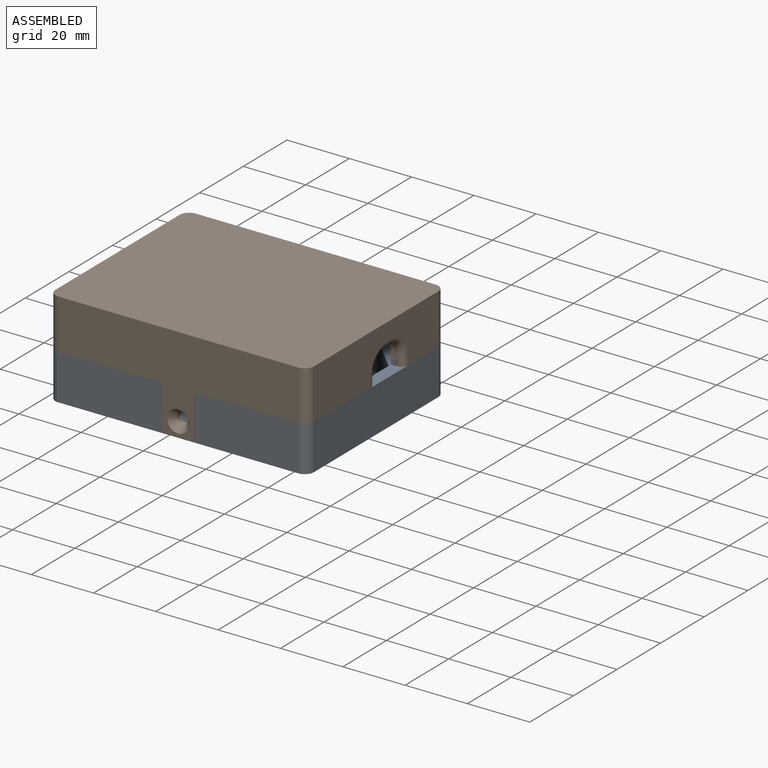
[diagram: assembled view]
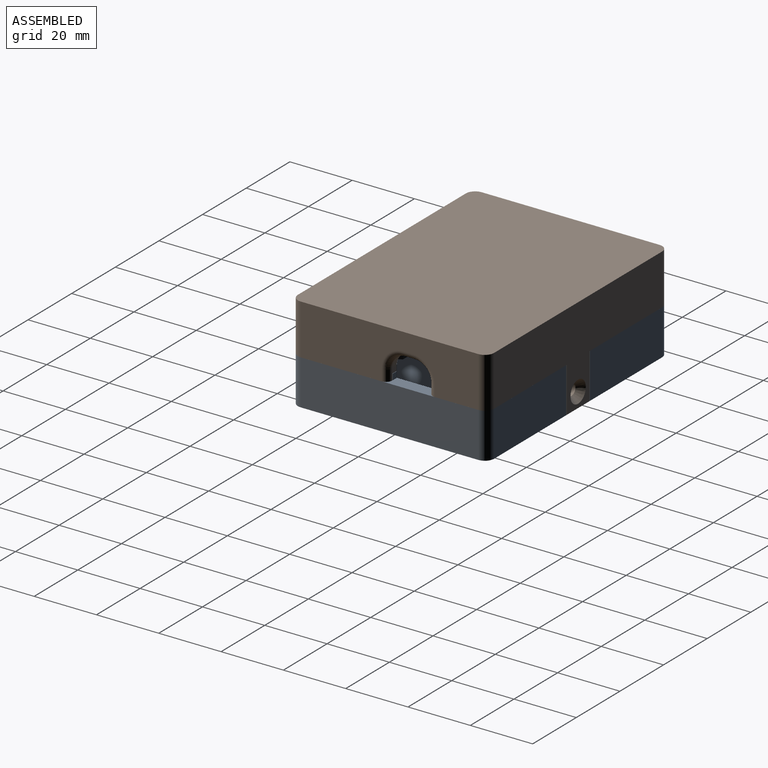
[diagram: assembled view, second angle]
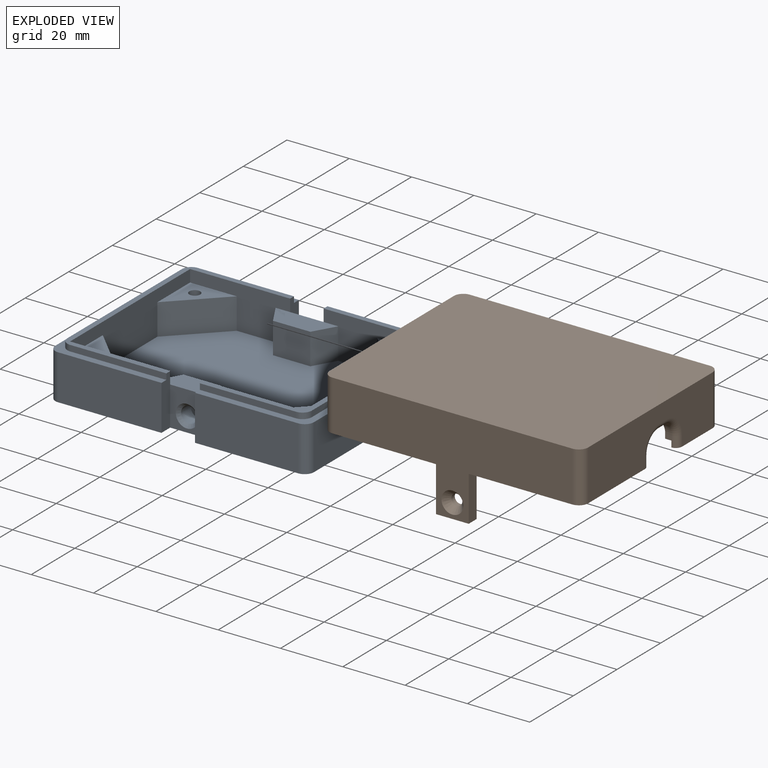
[diagram: exploded view]
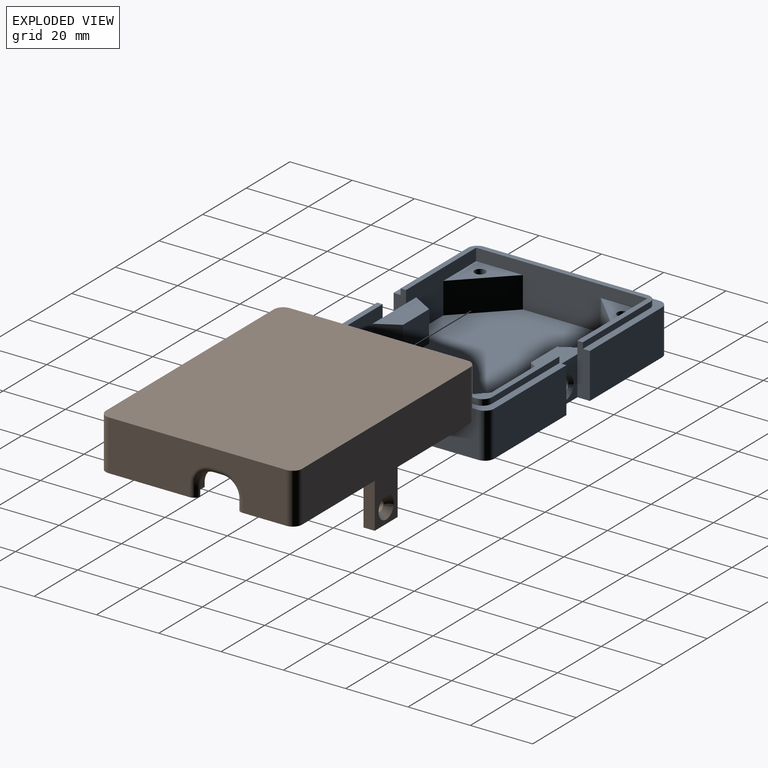
[diagram: exploded view, second angle]
ASSEMBLY  parts=2 mates=3
PART A: 80 faces, bbox 83x63x16.4 mm
  f0: plane 25.75x1.9mm, normal (1,0,0), area 48.9mm2, adj f6,f55,f58,f73
  f1: plane 33.88x16.75mm, normal (0,0,1), area 83.6mm2, adj f9,f21,f43,f53,f54,f59,f72
  f2: cylinder r=1.75mm len=6mm, axis (0,0,1), area 66mm2, adj f29,f69
  f3: cylinder r=1.75mm len=6mm, axis (0,0,1), area 66mm2, adj f27,f68
  f4: cylinder r=1.75mm len=6mm, axis (0,0,1), area 66mm2, adj f25,f70
  f5: cylinder r=1.75mm len=6mm, axis (0,0,1), area 66mm2, adj f23,f71
  f6: plane 63x36.13mm, normal (0,0,1), area 316.9mm2, adj f0,f8,f10,f20,f21,f38,f43,f52
  f7: plane 63x36.13mm, normal (0,0,1), area 294.2mm2, adj f17,f18,f19,f40,f44,f48,f49,f50
  f8: plane 33.13x14.5mm, normal (0,1,0), area 480.3mm2, adj f6,f12,f43,f63
  f9: plane 32.13x13.9mm, normal (0,-1,0), area 249.9mm2, adj f1,f13,f21,f26,f27,f30,f32,f43
  f10: plane 33.13x14.5mm, normal (0,-1,0), area 480.3mm2, adj f6,f12,f38,f62
  f11: plane 32.13x13.9mm, normal (0,1,0), area 249.9mm2, adj f13,f21,f28,f29,f34,f35,f38,f55
  f12: plane 83x63mm, normal (0,0,-1), area 4972.4mm2, adj f8,f10,f17,f18,f19,f20,f38,f39
  f13: plane 75x55mm, normal (0,0,1), area 3450.4mm2, adj f9,f11,f14,f15,f16,f21,f22,f24
  f14: plane 32.13x13.9mm, normal (0,1,0), area 249.9mm2, adj f13,f16,f24,f25,f34,f37,f40,f51
  f15: plane 32.13x13.9mm, normal (0,-1,0), area 249.9mm2, adj f13,f16,f22,f23,f30,f31,f44,f51
  f16: plane 55x13.9mm, normal (1,0,0), area 464.5mm2, adj f13,f14,f15,f22,f23,f24,f25,f51
  f17: plane 33.13x14.5mm, normal (0,1,0), area 480.3mm2, adj f7,f12,f44,f60
  f18: plane 57x14.5mm, normal (-1,0,0), area 826.5mm2, adj f7,f12,f60,f61
  f19: plane 33.13x14.5mm, normal (0,-1,0), area 480.3mm2, adj f7,f12,f40,f61
  f20: plane 57x14.5mm, normal (1,0,0), area 826.5mm2, adj f6,f12,f62,f63
  f21: plane 55x13.9mm, normal (-1,0,0), area 439.8mm2, adj f1,f6,f9,f11,f13,f26,f27,f28
  f22: plane 15x15mm, normal (0.71,-0.71,0), area 212.1mm2, adj f13,f15,f16,f23
  f23: plane 15x15mm, normal (0,0,1), area 102.9mm2, adj f5,f15,f16,f22
  f24: plane 15x15mm, normal (0.71,0.71,0), area 212.1mm2, adj f13,f14,f16,f25
  f25: plane 15x15mm, normal (0,0,1), area 102.9mm2, adj f4,f14,f16,f24
  f26: plane 15x15mm, normal (-0.71,-0.71,0), area 212.1mm2, adj f9,f13,f21,f27
  f27: plane 15x15mm, normal (0,0,1), area 102.9mm2, adj f3,f9,f21,f26
  f28: plane 15x15mm, normal (-0.71,0.71,0), area 212.1mm2, adj f11,f13,f21,f29
  f29: plane 15x15mm, normal (0,0,1), area 102.9mm2, adj f2,f11,f21,f28
  f30: plane 20.08x7mm, normal (0,0,1), area 112.3mm2, adj f9,f15,f31,f32,f33,f45
  f31: plane 10x7mm, normal (-0.87,-0.5,0), area 80.8mm2, adj f13,f15,f30,f33
  f32: plane 10x7mm, normal (0.87,-0.5,0), area 80.8mm2, adj f9,f13,f30,f33
  f33: plane 12x10mm, normal (0,-1,0), area 120mm2, adj f13,f30,f31,f32
  f34: plane 20.08x7mm, normal (0,0,1), area 112.3mm2, adj f11,f14,f35,f36,f37,f39
  f35: plane 10x7mm, normal (0.87,0.5,0), area 80.8mm2, adj f11,f13,f34,f36
  f36: plane 12x10mm, normal (0,1,0), area 120mm2, adj f13,f34,f35,f37
  f37: plane 10x7mm, normal (-0.87,0.5,0), area 80.8mm2, adj f13,f14,f34,f36
  f38: plane 16.4x4mm, normal (-1,0,0), area 61.3mm2, adj f6,f10,f11,f12,f39,f52,f55
  f39: plane 12.5x10.75mm, normal (0,-1,0), area 94.2mm2, adj f12,f34,f38,f40,f79
  f40: plane 16.4x4mm, normal (1,0,0), area 61.3mm2, adj f7,f12,f14,f19,f39,f49,f51
  f41: cylinder r=2.58mm len=5.15mm, axis (0,-1,0), area 71.2mm2, adj f42,f79
  f42: plane 5.15x5.15mm, normal (0,-1,0), area 20.8mm2, adj f41
  f43: plane 16.4x4mm, normal (-1,0,0), area 61.3mm2, adj f1,f6,f8,f9,f12,f45,f54
  f44: plane 16.4x4mm, normal (1,0,0), area 61.3mm2, adj f7,f12,f15,f17,f45,f50,f51
  f45: plane 12.5x10.75mm, normal (0,1,0), area 94.2mm2, adj f12,f30,f43,f44,f78
  f46: cylinder r=2.58mm len=5.15mm, axis (0,1,0), area 71.2mm2, adj f47,f78
  f47: plane 5.15x5.15mm, normal (0,1,0), area 20.8mm2, adj f46
  f48: plane 52.5x1.9mm, normal (-1,0,0), area 99.7mm2, adj f7,f51,f56,f57
  f49: plane 30.88x1.9mm, normal (0,-1,0), area 58.7mm2, adj f7,f40,f51,f56
  f50: plane 30.88x1.9mm, normal (0,1,0), area 58.7mm2, adj f7,f44,f51,f57
  f51: plane 58.5x33.88mm, normal (0,0,1), area 210.9mm2, adj f14,f15,f16,f40,f44,f48,f49,f50
  f52: plane 30.88x1.9mm, normal (0,-1,0), area 58.7mm2, adj f6,f38,f55,f58
  f53: plane 13.75x1.9mm, normal (1,0,0), area 26.1mm2, adj f1,f6,f59,f72
  f54: plane 30.88x1.9mm, normal (0,1,0), area 58.7mm2, adj f1,f6,f43,f59
  f55: plane 33.88x28.75mm, normal (0,0,1), area 104.6mm2, adj f0,f11,f21,f38,f52,f58,f73
  f56: cylinder r=3mm len=3mm, axis (0,0,1), area 9mm2, adj f7,f48,f49,f51
  f57: cylinder r=3mm len=3mm, axis (0,0,-1), area 9mm2, adj f7,f48,f50,f51
  f58: cylinder r=3mm len=3mm, axis (0,0,-1), area 9mm2, adj f0,f6,f52,f55
  f59: cylinder r=3mm len=3mm, axis (0,0,1), area 9mm2, adj f1,f6,f53,f54
  f60: cylinder r=3mm len=14.5mm, axis (0,0,-1), area 68.3mm2, adj f7,f12,f17,f18
  f61: cylinder r=3mm len=14.5mm, axis (0,0,1), area 68.3mm2, adj f7,f12,f18,f19
  f62: cylinder r=3mm len=14.5mm, axis (0,0,-1), area 68.3mm2, adj f6,f10,f12,f20
  f63: cylinder r=3mm len=14.5mm, axis (0,0,1), area 68.3mm2, adj f6,f8,f12,f20
  f64: cylinder r=2.6mm len=5.2mm, axis (0,0,-1), area 73.7mm2, adj f71,f74
  f65: cylinder r=2.6mm len=5.2mm, axis (0,0,-1), area 73.7mm2, adj f70,f75
  f66: cylinder r=2.6mm len=5.2mm, axis (0,0,-1), area 73.7mm2, adj f68,f77
  f67: cylinder r=2.6mm len=5.2mm, axis (0,0,-1), area 73.7mm2, adj f69,f76
  f68: torus R=1.6mm, axis (0,0,1), area 20.5mm2, adj f3,f66
  f69: torus R=1.6mm, axis (0,0,1), area 20.5mm2, adj f2,f67
  f70: torus R=1.6mm, axis (0,0,1), area 20.5mm2, adj f4,f65
  f71: torus R=1.6mm, axis (0,0,1), area 20.5mm2, adj f5,f64
  f72: plane 1.9x1.75mm, normal (0,-1,0), area 3.3mm2, adj f1,f6,f21,f53
  f73: plane 1.9x1.75mm, normal (0,1,0), area 3.3mm2, adj f0,f6,f21,f55
  f74: cone r=2.6mm half-angle=45deg, axis (0,0,-1), area 27.5mm2, adj f12,f64
  f75: cone r=2.6mm half-angle=45deg, axis (0,0,-1), area 27.5mm2, adj f12,f65
  f76: cone r=2.6mm half-angle=45deg, axis (0,0,-1), area 27.5mm2, adj f12,f67
  f77: cone r=2.6mm half-angle=45deg, axis (0,0,-1), area 27.5mm2, adj f12,f66
  f78: cone r=3.58mm half-angle=45deg, axis (0,1,0), area 27.3mm2, adj f45,f46
  f79: cone r=2.58mm half-angle=45deg, axis (0,-1,0), area 27.3mm2, adj f39,f41
PART B: 101 faces, bbox 83x63x30.7 mm
  f0: plane 36.25x29mm, normal (0,0,1), area 126.5mm2, adj f2,f13,f22,f32,f33,f39,f51,f96
  f1: plane 55x13mm, normal (-1,0,0), area 685.5mm2, adj f4,f9,f10,f15,f36,f96,f97,f98
  f2: plane 57x16.2mm, normal (1,0,0), area 883.9mm2, adj f0,f7,f16,f50,f51,f96,f97,f98
  f3: plane 24x2mm, normal (-1,0,0), area 48mm2, adj f4,f7,f38,f97
  f4: plane 79x29mm, normal (0,0,1), area 241.3mm2, adj f1,f3,f8,f9,f17,f24,f25,f26
  f5: cylinder r=1.75mm len=3.5mm, axis (0,-1,0), area 16.7mm2, adj f21,f53
  f6: plane 36.25x31mm, normal (0,0,1), area 129.6mm2, adj f12,f14,f26,f29,f30,f37,f43,f49
  f7: plane 36.25x29mm, normal (0,0,1), area 126.5mm2, adj f2,f3,f14,f24,f31,f38,f50,f97
  f8: plane 55x13mm, normal (1,0,0), area 641.2mm2, adj f4,f9,f10,f15,f17,f18,f19,f36
  f9: plane 75x13mm, normal (0,1,0), area 975mm2, adj f1,f4,f8,f15
  f10: plane 75x13mm, normal (0,-1,0), area 975mm2, adj f1,f8,f15,f36
  f11: plane 36.25x19mm, normal (0,0,1), area 105.6mm2, adj f12,f13,f20,f34,f35,f40,f47,f48
  f12: plane 57x16.2mm, normal (-1,0,0), area 765.9mm2, adj f6,f11,f16,f43,f44,f45,f46,f47
  f13: plane 77x30.7mm, normal (0,1,0), area 1361.2mm2, adj f0,f11,f16,f20,f22,f23,f48,f51
  f14: plane 77x30.7mm, normal (0,-1,0), area 1361.2mm2, adj f6,f7,f16,f24,f26,f27,f49,f50
  f15: plane 75x55mm, normal (0,0,1), area 3754.8mm2, adj f1,f8,f9,f10,f54,f55,f56,f57
  f16: plane 83x63mm, normal (0,0,-1), area 5221.3mm2, adj f2,f12,f13,f14,f48,f49,f50,f51
  f17: plane 2x1.5mm, normal (0,1,0), area 3mm2, adj f4,f8,f41,f43
  f18: plane 2x1.5mm, normal (0,-1,0), area 3mm2, adj f8,f36,f42,f47
  f19: plane 3x2mm, normal (0,0,1), area 6mm2, adj f8,f41,f42,f45
  f20: plane 16.5x3.6mm, normal (-1,0,0), area 55.4mm2, adj f11,f13,f21,f23,f34,f36
  f21: plane 16.5x10.5mm, normal (0,-1,0), area 163.6mm2, adj f5,f20,f22,f23,f36
  f22: plane 16.5x3.6mm, normal (1,0,0), area 55.4mm2, adj f0,f13,f21,f23,f33,f36
  f23: plane 10.5x3.6mm, normal (0,0,1), area 37.8mm2, adj f13,f20,f21,f22
  f24: plane 16.5x3.6mm, normal (1,0,0), area 55.4mm2, adj f4,f7,f14,f25,f27,f31
  f25: plane 16.5x10.5mm, normal (0,1,0), area 163.6mm2, adj f4,f24,f26,f27,f28
  f26: plane 16.5x3.6mm, normal (-1,0,0), area 55.4mm2, adj f4,f6,f14,f25,f27,f30
  f27: plane 10.5x3.6mm, normal (0,0,1), area 37.8mm2, adj f14,f24,f25,f26
  f28: cylinder r=1.75mm len=3.5mm, axis (0,-1,0), area 16.7mm2, adj f25,f52
  f29: plane 26x2mm, normal (1,0,0), area 52mm2, adj f4,f6,f37,f43
  f30: plane 31.25x2mm, normal (0,1,0), area 62.5mm2, adj f4,f6,f26,f37
  f31: plane 31.25x2mm, normal (0,1,0), area 62.5mm2, adj f4,f7,f24,f38
  f32: plane 24x2mm, normal (-1,0,0), area 48mm2, adj f0,f36,f39,f96
  f33: plane 31.25x2mm, normal (0,-1,0), area 62.5mm2, adj f0,f22,f36,f39
  f34: plane 31.25x2mm, normal (0,-1,0), area 62.5mm2, adj f11,f20,f36,f40
  f35: plane 14x2mm, normal (1,0,0), area 28mm2, adj f11,f36,f40,f47
  f36: plane 79x27mm, normal (0,0,1), area 217.3mm2, adj f1,f8,f10,f18,f20,f21,f22,f32
  f37: cylinder r=3mm len=3mm, axis (0,0,-1), area 9.4mm2, adj f4,f6,f29,f30
  f38: cylinder r=3mm len=3mm, axis (0,0,-1), area 9.4mm2, adj f3,f4,f7,f31
  f39: cylinder r=3mm len=3mm, axis (0,0,-1), area 9.4mm2, adj f0,f32,f33,f36
  f40: cylinder r=3mm len=3mm, axis (0,0,-1), area 9.4mm2, adj f11,f34,f35,f36
  f41: cylinder r=5mm len=5mm, axis (1,0,0), area 15.7mm2, adj f8,f17,f19,f44
  f42: cylinder r=5mm len=5mm, axis (-1,0,0), area 15.7mm2, adj f8,f18,f19,f46
  f43: cylinder r=2mm len=3.5mm, axis (0,0,-1), area 11mm2, adj f6,f12,f17,f29,f44
  f44: torus R=7mm, axis (-1,0,0), area 28.3mm2, adj f12,f41,f43,f45
  f45: cylinder r=2mm len=3mm, axis (0,1,0), area 9.4mm2, adj f12,f19,f44,f46
  f46: torus R=7mm, axis (-1,0,0), area 28.3mm2, adj f12,f42,f45,f47
  f47: cylinder r=2mm len=3.5mm, axis (0,0,1), area 11mm2, adj f11,f12,f18,f35,f46
  f48: cylinder r=3mm len=16.2mm, axis (0,0,-1), area 76.3mm2, adj f11,f12,f13,f16
  f49: cylinder r=3mm len=16.2mm, axis (0,0,1), area 76.3mm2, adj f6,f12,f14,f16
  f50: cylinder r=3mm len=16.2mm, axis (0,0,-1), area 76.3mm2, adj f2,f7,f14,f16
  f51: cylinder r=3mm len=16.2mm, axis (0,0,1), area 76.3mm2, adj f0,f2,f13,f16
  f52: cone r=3.5mm half-angle=40deg, axis (0,-1,0), area 44.9mm2, adj f14,f28
  f53: cone r=3.5mm half-angle=40deg, axis (0,1,0), area 44.9mm2, adj f5,f13
  f54: plane 1.55x0.75mm, normal (-0.9,0.44,0), area 1mm2, adj f15,f55,f94,f95
  f55: cylinder r=0.28mm len=0.6mm, axis (0,0,-1), area 0.2mm2, adj f15,f54,f56,f95
  f56: cylinder r=69.21mm len=3.32mm, axis (0,0,-1), area 2.1mm2, adj f15,f55,f57,f95
  f57: plane 0.82x0.6mm, normal (-0.87,-0.5,0), area 0.6mm2, adj f15,f56,f58,f95
  f58: extruded ~9.86x3.97mm, area 6.4mm2, adj f15,f57,f59,f95
  f59: cylinder r=0.28mm len=0.6mm, axis (0,0,-1), area 0.3mm2, adj f15,f58,f60,f95
  f60: plane 2.83x0.6mm, normal (0,1,0), area 1.7mm2, adj f15,f59,f61,f95
  f61: cylinder r=0.28mm len=0.6mm, axis (0,0,-1), area 0.2mm2, adj f15,f60,f62,f95
  f62: extruded ~10.54x4.06mm, area 6.8mm2, adj f15,f61,f63,f95
  f63: plane 1.07x0.6mm, normal (0.89,0.45,0), area 0.7mm2, adj f15,f62,f64,f95
  f64: cylinder r=69.21mm len=13.65mm, axis (0,0,-1), area 8.2mm2, adj f15,f63,f65,f95
  f65: cylinder r=0.28mm len=0.6mm, axis (0,0,-1), area 0.5mm2, adj f15,f64,f66,f95
  f66: extruded ~12.84x0.6mm, area 7.7mm2, adj f15,f65,f67,f95
  f67: plane 0.6x0.55mm, normal (0.89,0.45,0), area 0.4mm2, adj f15,f66,f68,f95
  f68: extruded ~18.89x11.86mm, area 17.3mm2, adj f15,f67,f69,f95
  f69: plane 1.25x0.64mm, normal (-0.89,0.46,0), area 0.8mm2, adj f15,f68,f70,f95
  f70: extruded ~14.32x10.75mm, area 11.1mm2, adj f15,f69,f71,f95
  f71: cylinder r=0.28mm len=0.6mm, axis (0,0,-1), area 0.6mm2, adj f15,f70,f72,f95
  f72: extruded ~12.35x11.74mm, area 10.8mm2, adj f15,f71,f73,f95
  f73: plane 0.67x0.6mm, normal (-0.89,0.46,0), area 0.5mm2, adj f15,f72,f74,f95
  f74: extruded ~23.87x17.82mm, area 26.6mm2, adj f15,f73,f75,f95
  f75: extruded ~9.65x1.51mm, area 6.3mm2, adj f15,f74,f76,f95
  f76: cylinder r=0.28mm len=0.6mm, axis (0,0,-1), area 0.3mm2, adj f15,f75,f77,f95
  f77: plane 3.7x0.6mm, normal (-1,0.01,0), area 2.2mm2, adj f15,f76,f78,f95
  f78: cylinder r=0.28mm len=0.6mm, axis (0,0,-1), area 0.5mm2, adj f15,f77,f79,f95
  f79: plane 3.34x0.83mm, normal (0.97,0.24,0), area 2.1mm2, adj f15,f78,f80,f95
  f80: cylinder r=0.28mm len=0.6mm, axis (0,0,-1), area 0.2mm2, adj f15,f79,f81,f95
  f81: extruded ~20.23x17.33mm, area 28.1mm2, adj f15,f80,f82,f95
  f82: plane 1.12x0.6mm, normal (0.88,-0.47,0), area 0.8mm2, adj f15,f81,f83,f95
  f83: extruded ~18.04x15.06mm, area 17.6mm2, adj f15,f82,f84,f95
  f84: cylinder r=0.28mm len=0.6mm, axis (0,0,-1), area 0.4mm2, adj f15,f83,f85,f95
  f85: plane 6.12x1.58mm, normal (0.97,0.25,0), area 3.8mm2, adj f15,f84,f86,f95
  f86: cylinder r=0.28mm len=0.6mm, axis (0,0,-1), area 0.4mm2, adj f15,f85,f87,f95
  f87: plane 2.26x1.16mm, normal (-0.46,-0.89,0), area 1.5mm2, adj f15,f86,f88,f95
  f88: cylinder r=0.28mm len=0.6mm, axis (0,0,-1), area 0.2mm2, adj f15,f87,f89,f95
  f89: extruded ~18.81x13.51mm, area 15.8mm2, adj f15,f88,f90,f95
  f90: plane 0.84x0.6mm, normal (0.88,-0.47,0), area 0.6mm2, adj f15,f89,f91,f95
  f91: extruded ~23.7x10.02mm, area 19.2mm2, adj f15,f90,f92,f95
  f92: plane 1.03x0.6mm, normal (-0.87,-0.5,0), area 0.7mm2, adj f15,f91,f93,f95
  f93: extruded ~5.41x0.88mm, area 3.3mm2, adj f15,f92,f94,f95
  f94: cylinder r=0.28mm len=0.6mm, axis (0,0,-1), area 0.3mm2, adj f15,f54,f93,f95
  f95: plane 54.52x37.39mm, normal (0,0,1), area 370.2mm2, adj f54,f55,f56,f57,f58,f59,f60,f61
  f96: plane 6.25x4mm, normal (0,-1,0), area 21mm2, adj f0,f1,f2,f32,f36,f99
  f97: plane 6.25x4mm, normal (0,1,0), area 21mm2, adj f1,f2,f3,f4,f7,f100
  f98: plane 4x1mm, normal (0,0,1), area 4mm2, adj f1,f2,f99,f100
  f99: cylinder r=2mm len=4mm, axis (1,0,0), area 12.6mm2, adj f1,f2,f96,f98
  f100: cylinder r=2mm len=4mm, axis (-1,0,0), area 12.6mm2, adj f1,f2,f97,f98
PLACE A t=(-32.63,-7.02,17.57)mm fixed
PLACE B rot(axis=(0,1,0),180deg) t=(42.37,-7.02,44.57)mm
MATE planar B.f12 <-> A.f20  axis (1,0,0) through (46.37,19.25,38.35)mm
MATE planar B.f13 <-> A.f8  axis (0,1,0) through (4.87,51.98,36.45)mm
MATE cylindrical A.f41 <-> B.f5  axis (0,1,0) through (4.87,44.78,19.82)mm
